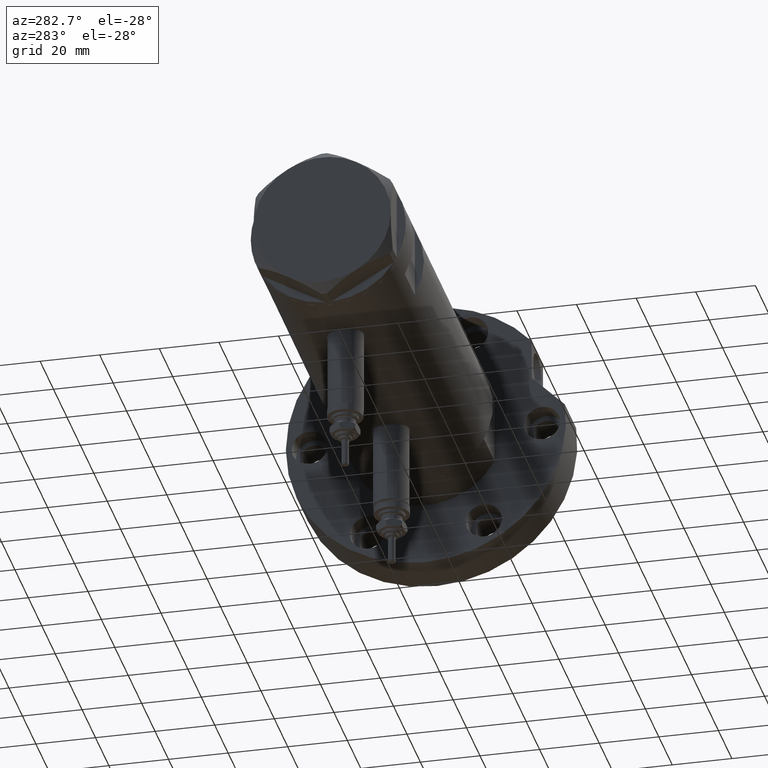
[diagram: clean part render]
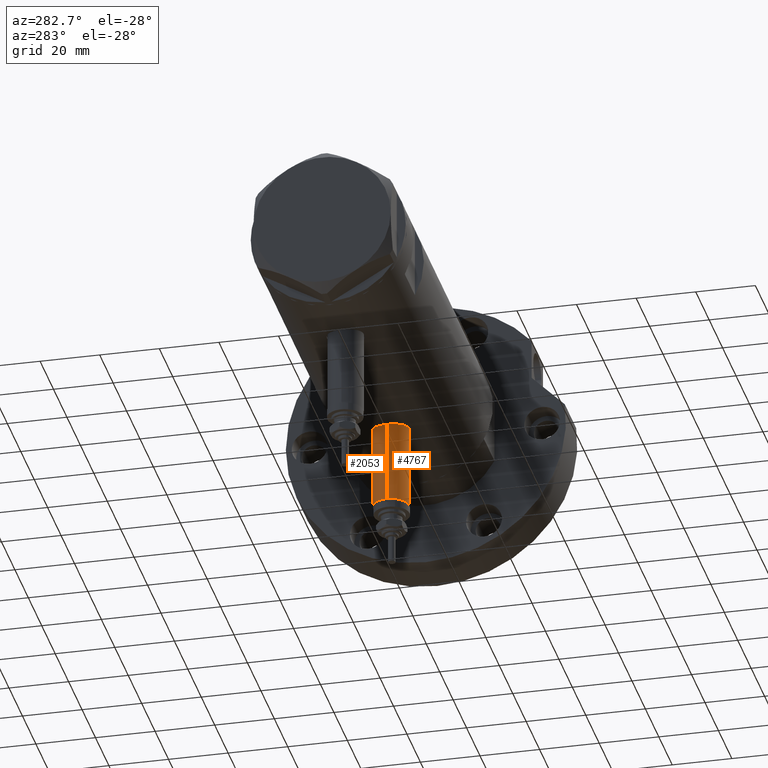
[diagram: same view with one multi-face feature highlighted, each face labeled with its STEP entity id]
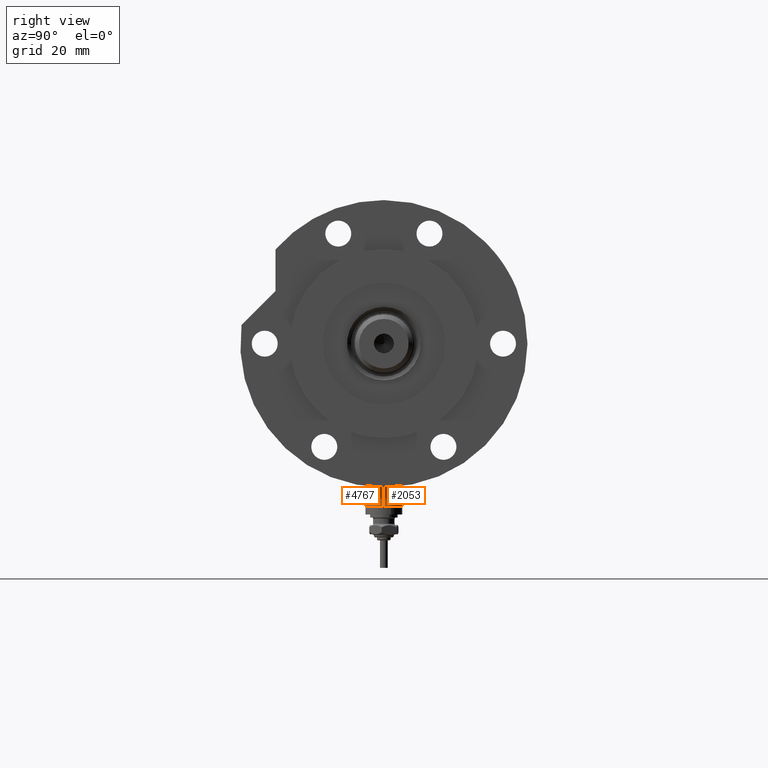
[diagram: same view with one multi-face feature highlighted, each face labeled with its STEP entity id]
A machine part, auxiliary view. The highlighted faces form ONE feature: a constant-radius fillet chain: 2 tangent blend faces with common blend radius 6 mm. The faces share edges in the B-rep.
A second angle (right view) of the same feature is appended — it is thin or edge-on in the first view.
Their STEP definitions:
[1] entity #2053 (Cylinder):
#79 = CARTESIAN_POINT ( 'NONE',  ( -24.80000000000000426, 7.347880794884123680E-16, -21.65000000000000213 ) ) ;
#97 = VECTOR ( 'NONE', #1757, 1000.000000000000000 ) ;
#527 = CARTESIAN_POINT ( 'NONE',  ( -53.40000000000000568, 7.347880794884122694E-16, -21.65000000000000568 ) ) ;
#845 = ORIENTED_EDGE ( 'NONE', *, *, #2839, .T. ) ;
#1062 = DIRECTION ( 'NONE',  ( 0.000000000000000000, 0.000000000000000000, 1.000000000000000000 ) ) ;
#1082 = CIRCLE ( 'NONE', #5606, 6.000000000000001776 ) ;
#1170 = DIRECTION ( 'NONE',  ( -1.000000000000000000, 0.000000000000000000, 0.000000000000000000 ) ) ;
#1215 = AXIS2_PLACEMENT_3D ( 'NONE', #5579, #7461, #2372 ) ;
#1275 = VERTEX_POINT ( 'NONE', #3060 ) ;
#1323 = VERTEX_POINT ( 'NONE', #79 ) ;
#1757 = DIRECTION ( 'NONE',  ( 1.000000000000000000, -0.000000000000000000, -0.000000000000000000 ) ) ;
#1888 = FACE_OUTER_BOUND ( 'NONE', #5290, .T. ) ;
#1910 = CARTESIAN_POINT ( 'NONE',  ( -53.40000000000000568, 0.000000000000000000, -33.65000000000001279 ) ) ;
#2053 = ADVANCED_FACE ( 'NONE', ( #1888 ), #4968, .T. ) ;
#2224 = CARTESIAN_POINT ( 'NONE',  ( -24.80000000000000426, 0.000000000000000000, -33.65000000000001279 ) ) ;
#2372 = DIRECTION ( 'NONE',  ( 0.000000000000000000, 0.000000000000000000, -1.000000000000000000 ) ) ;
#2482 = EDGE_CURVE ( 'NONE', #1275, #6509, #3259, .T. ) ;
#2547 = CARTESIAN_POINT ( 'NONE',  ( -53.40000000000000568, 0.000000000000000000, -27.65000000000000924 ) ) ;
#2839 = EDGE_CURVE ( 'NONE', #3228, #1323, #7940, .T. ) ;
#3060 = CARTESIAN_POINT ( 'NONE',  ( -53.40000000000000568, 0.000000000000000000, -33.65000000000001279 ) ) ;
#3187 = ORIENTED_EDGE ( 'NONE', *, *, #2482, .F. ) ;
#3228 = VERTEX_POINT ( 'NONE', #6962 ) ;
#3259 = LINE ( 'NONE', #1910, #4574 ) ;
#3543 = EDGE_CURVE ( 'NONE', #1323, #6509, #6656, .T. ) ;
#3789 = DIRECTION ( 'NONE',  ( -1.000000000000000000, 0.000000000000000000, 0.000000000000000000 ) ) ;
#3814 = AXIS2_PLACEMENT_3D ( 'NONE', #5432, #1170, #1062 ) ;
#4413 = DIRECTION ( 'NONE',  ( 1.000000000000000000, -0.000000000000000000, -0.000000000000000000 ) ) ;
#4464 = ORIENTED_EDGE ( 'NONE', *, *, #3543, .T. ) ;
#4574 = VECTOR ( 'NONE', #4413, 1000.000000000000000 ) ;
#4968 = CYLINDRICAL_SURFACE ( 'NONE', #1215, 6.000000000000005329 ) ;
#5290 = EDGE_LOOP ( 'NONE', ( #6439, #845, #4464, #3187 ) ) ;
#5432 = CARTESIAN_POINT ( 'NONE',  ( -24.80000000000000426, 0.000000000000000000, -27.65000000000000924 ) ) ;
#5579 = CARTESIAN_POINT ( 'NONE',  ( -53.40000000000000568, 0.000000000000000000, -27.65000000000000924 ) ) ;
#5606 = AXIS2_PLACEMENT_3D ( 'NONE', #2547, #3789, #6738 ) ;
#6439 = ORIENTED_EDGE ( 'NONE', *, *, #7791, .F. ) ;
#6509 = VERTEX_POINT ( 'NONE', #2224 ) ;
#6656 = CIRCLE ( 'NONE', #3814, 6.000000000000001776 ) ;
#6738 = DIRECTION ( 'NONE',  ( 0.000000000000000000, 0.000000000000000000, 1.000000000000000000 ) ) ;
#6962 = CARTESIAN_POINT ( 'NONE',  ( -53.40000000000000568, 7.347880794884123680E-16, -21.65000000000000213 ) ) ;
#7461 = DIRECTION ( 'NONE',  ( 1.000000000000000000, -0.000000000000000000, -0.000000000000000000 ) ) ;
#7791 = EDGE_CURVE ( 'NONE', #3228, #1275, #1082, .T. ) ;
#7940 = LINE ( 'NONE', #527, #97 ) ;
[2] entity #4767 (Cylinder):
#79 = CARTESIAN_POINT ( 'NONE',  ( -24.80000000000000426, 7.347880794884123680E-16, -21.65000000000000213 ) ) ;
#97 = VECTOR ( 'NONE', #1757, 1000.000000000000000 ) ;
#303 = DIRECTION ( 'NONE',  ( 0.000000000000000000, 0.000000000000000000, 1.000000000000000000 ) ) ;
#421 = ORIENTED_EDGE ( 'NONE', *, *, #1322, .F. ) ;
#452 = AXIS2_PLACEMENT_3D ( 'NONE', #2670, #898, #303 ) ;
#527 = CARTESIAN_POINT ( 'NONE',  ( -53.40000000000000568, 7.347880794884122694E-16, -21.65000000000000568 ) ) ;
#898 = DIRECTION ( 'NONE',  ( -1.000000000000000000, 0.000000000000000000, 0.000000000000000000 ) ) ;
#1008 = DIRECTION ( 'NONE',  ( 0.000000000000000000, 0.000000000000000000, -1.000000000000000000 ) ) ;
#1275 = VERTEX_POINT ( 'NONE', #3060 ) ;
#1322 = EDGE_CURVE ( 'NONE', #1275, #3228, #1357, .T. ) ;
#1323 = VERTEX_POINT ( 'NONE', #79 ) ;
#1357 = CIRCLE ( 'NONE', #5888, 6.000000000000001776 ) ;
#1757 = DIRECTION ( 'NONE',  ( 1.000000000000000000, -0.000000000000000000, -0.000000000000000000 ) ) ;
#1910 = CARTESIAN_POINT ( 'NONE',  ( -53.40000000000000568, 0.000000000000000000, -33.65000000000001279 ) ) ;
#2224 = CARTESIAN_POINT ( 'NONE',  ( -24.80000000000000426, 0.000000000000000000, -33.65000000000001279 ) ) ;
#2334 = ORIENTED_EDGE ( 'NONE', *, *, #6706, .T. ) ;
#2401 = EDGE_LOOP ( 'NONE', ( #3551, #421, #3469, #2334 ) ) ;
#2436 = DIRECTION ( 'NONE',  ( 0.000000000000000000, 0.000000000000000000, 1.000000000000000000 ) ) ;
#2482 = EDGE_CURVE ( 'NONE', #1275, #6509, #3259, .T. ) ;
#2670 = CARTESIAN_POINT ( 'NONE',  ( -24.80000000000000426, 0.000000000000000000, -27.65000000000000924 ) ) ;
#2839 = EDGE_CURVE ( 'NONE', #3228, #1323, #7940, .T. ) ;
#3060 = CARTESIAN_POINT ( 'NONE',  ( -53.40000000000000568, 0.000000000000000000, -33.65000000000001279 ) ) ;
#3228 = VERTEX_POINT ( 'NONE', #6962 ) ;
#3259 = LINE ( 'NONE', #1910, #4574 ) ;
#3469 = ORIENTED_EDGE ( 'NONE', *, *, #2482, .T. ) ;
#3551 = ORIENTED_EDGE ( 'NONE', *, *, #2839, .F. ) ;
#4060 = CARTESIAN_POINT ( 'NONE',  ( -53.40000000000000568, 0.000000000000000000, -27.65000000000000924 ) ) ;
#4413 = DIRECTION ( 'NONE',  ( 1.000000000000000000, -0.000000000000000000, -0.000000000000000000 ) ) ;
#4462 = CARTESIAN_POINT ( 'NONE',  ( -53.40000000000000568, 0.000000000000000000, -27.65000000000000924 ) ) ;
#4574 = VECTOR ( 'NONE', #4413, 1000.000000000000000 ) ;
#4624 = FACE_OUTER_BOUND ( 'NONE', #2401, .T. ) ;
#4767 = ADVANCED_FACE ( 'NONE', ( #4624 ), #6485, .T. ) ;
#5028 = DIRECTION ( 'NONE',  ( -1.000000000000000000, 0.000000000000000000, 0.000000000000000000 ) ) ;
#5596 = CIRCLE ( 'NONE', #452, 6.000000000000001776 ) ;
#5888 = AXIS2_PLACEMENT_3D ( 'NONE', #4462, #5028, #2436 ) ;
#6485 = CYLINDRICAL_SURFACE ( 'NONE', #6492, 6.000000000000005329 ) ;
#6492 = AXIS2_PLACEMENT_3D ( 'NONE', #4060, #6539, #1008 ) ;
#6509 = VERTEX_POINT ( 'NONE', #2224 ) ;
#6539 = DIRECTION ( 'NONE',  ( 1.000000000000000000, -0.000000000000000000, -0.000000000000000000 ) ) ;
#6706 = EDGE_CURVE ( 'NONE', #6509, #1323, #5596, .T. ) ;
#6962 = CARTESIAN_POINT ( 'NONE',  ( -53.40000000000000568, 7.347880794884123680E-16, -21.65000000000000213 ) ) ;
#7940 = LINE ( 'NONE', #527, #97 ) ;